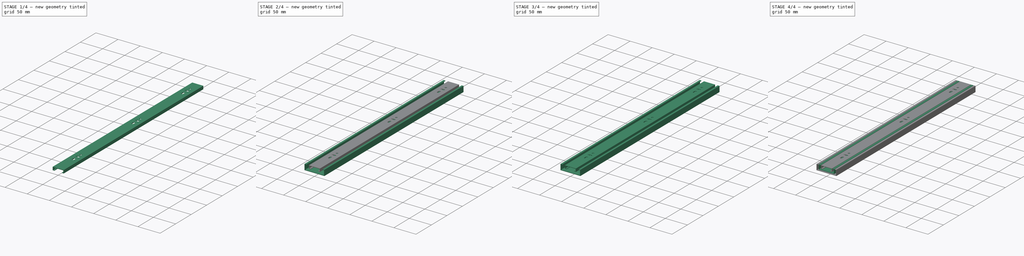
[diagram: build sequence overview — one tinted view per stage of 4, left to right]
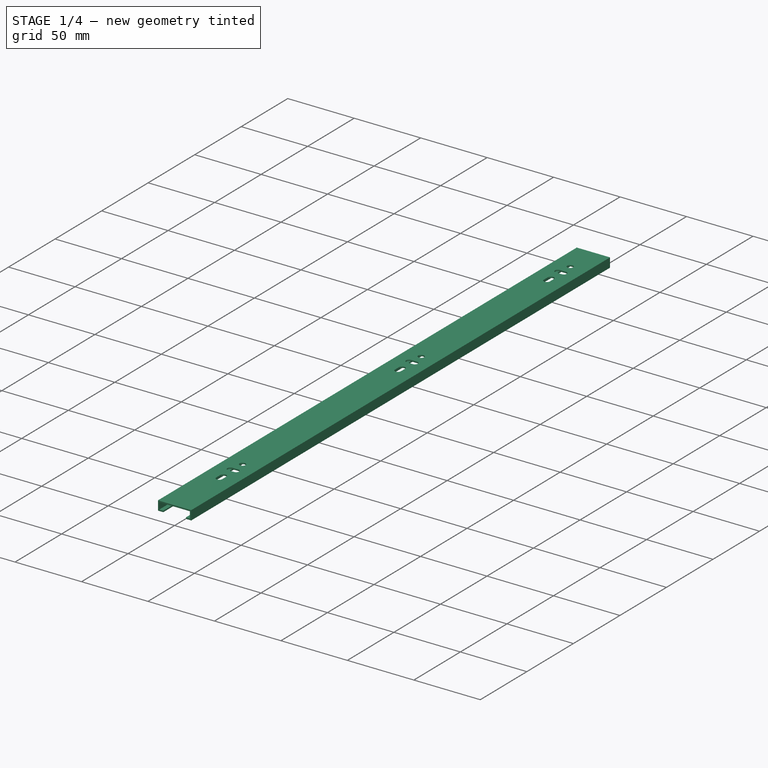
[diagram: stage 1 of 4 — iso view after this stage's code; geometry added in this stage tinted green]
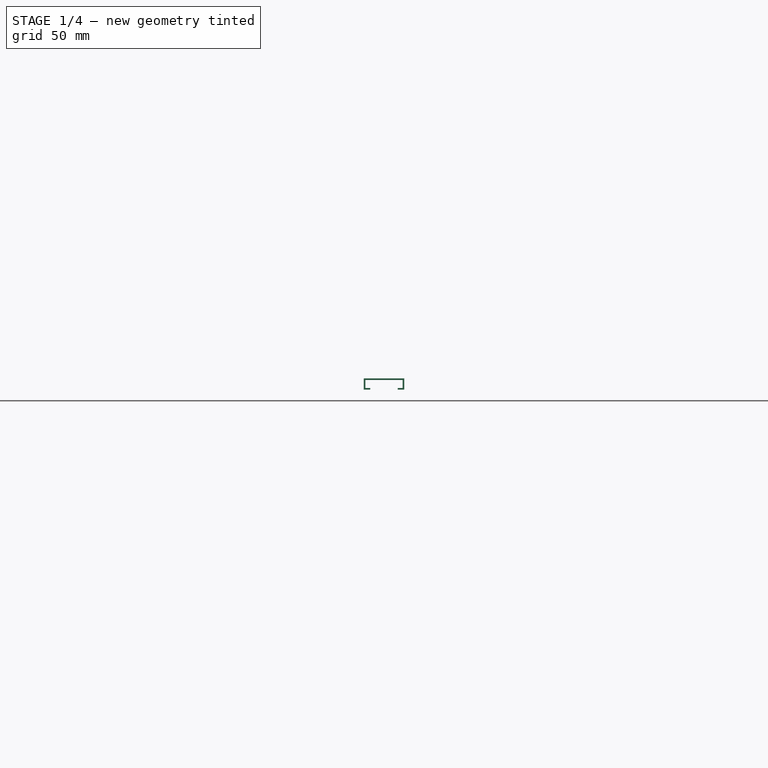
[diagram: stage 1 of 4 — front view after this stage's code; geometry added in this stage tinted green]
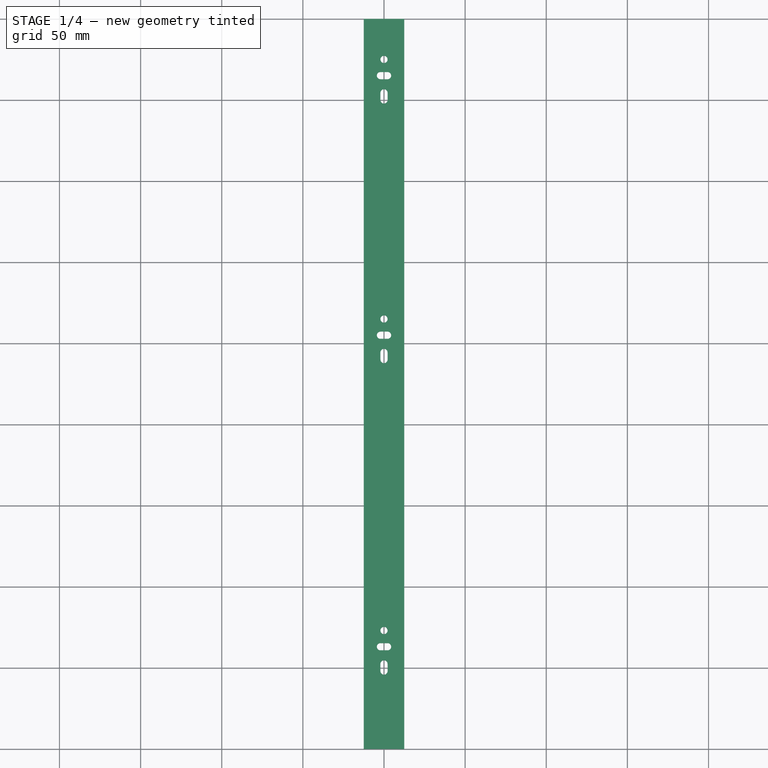
[diagram: stage 1 of 4 — top view after this stage's code; geometry added in this stage tinted green]
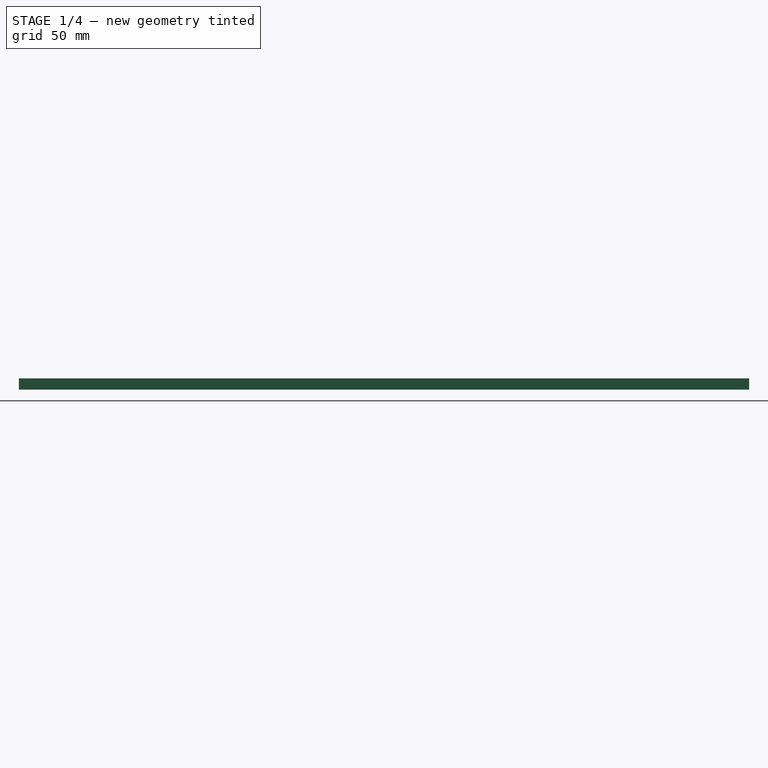
[diagram: stage 1 of 4 — right view after this stage's code; geometry added in this stage tinted green]
FCSTD DOCUMENT  (FreeCAD 0.19R18044 (Git))
Label: rail-450
License: Public Domain
LicenseURL: http://en.wikipedia.org/wiki/Public_domain
objects: Part::FeaturePython×13, Sketcher::SketchObject×9, PartDesign::Pocket×6, App::FeaturePython×6, PartDesign::Pad×3, PartDesign::Body×3, PartDesign::LinearPattern×3, PartDesign::Line×2
note: 45 computed .brp shape members not serialized (recipe doc carries the construction recipe); baked Part::Feature solids carry a one-line shape summary decoded from their .brp

FEATURE [PartDesign::Body] Body001  label="rail 2"
  Group = -> [Sketch002,Pad001,Sketch003,Pocket001]
  Origin = -> Origin001
  SingleSolid = true
  Tip = -> Pocket001
FEATURE [Sketcher::SketchObject] Sketch004
  MapMode = 5
  Placement = pos=(0,0,0) rot=(1,0,0;1.5708rad)
  Support = -> [XZ_Plane002]
  sketch-geometry (4):
    g0: LineSegment StartX=-12.5 StartY=12.7 StartZ=0 EndX=12.5 EndY=12.7 EndZ=0
    g1: LineSegment StartX=12.5 StartY=12.7 StartZ=0 EndX=12.5 EndY=5.7 EndZ=0
    g2: LineSegment StartX=12.5 StartY=5.7 StartZ=0 EndX=-12.5 EndY=5.7 EndZ=0
    g3: LineSegment StartX=-12.5 StartY=5.7 StartZ=0 EndX=-12.5 EndY=12.7 EndZ=0
  constraints (11):
    c: Coincident(g0,g1)
    c: Coincident(g1,g2)
    c: Coincident(g2,g3)
    c: Coincident(g3,g0)
    c: Horizontal(g2)
    c: Vertical(g1)
    c: Vertical(g3)
    c: Symmetric(g0,g0,g-2)
    c: Distance(g0) = 25
    c: Distance(g3) = 7
    c: DistanceY(g-1,g0) = 12.7
FEATURE [PartDesign::Pad] Pad002
  ClaimChildren = false
  Length = 450
  Length2 = 100
  Placement = pos=(0,0,0) rot=(1,0,0;1.5708rad)
  Profile = -> Sketch004
  Type = 0
FEATURE [Sketcher::SketchObject] Sketch005
  ExternalGeometry = -> [Pad002]
  MapMode = 5
  Placement = pos=(0,-450,-9.9e-14) rot=(1,0,0;1.5708rad)
  Support = -> [Pad002]
  sketch-geometry (8):
    g0: LineSegment StartX=-11.5 StartY=11.7 StartZ=0 EndX=11.5 EndY=11.7 EndZ=0
    g1: LineSegment StartX=11.5 StartY=11.7 StartZ=0 EndX=11.5 EndY=6.7 EndZ=0
    g2: LineSegment StartX=11.5 StartY=6.7 StartZ=0 EndX=8.5 EndY=6.7 EndZ=0
    g3: LineSegment StartX=8.5 StartY=6.7 StartZ=0 EndX=8.5 EndY=5.7 EndZ=0
    g4: LineSegment StartX=8.5 StartY=5.7 StartZ=0 EndX=-8.5 EndY=5.7 EndZ=0
    g5: LineSegment StartX=-8.5 StartY=5.7 StartZ=0 EndX=-8.5 EndY=6.7 EndZ=0
    g6: LineSegment StartX=-8.5 StartY=6.7 StartZ=0 EndX=-11.5 EndY=6.7 EndZ=0
    g7: LineSegment StartX=-11.5 StartY=6.7 StartZ=0 EndX=-11.5 EndY=11.7 EndZ=0
  constraints (23):
    c: Coincident(g0,g1)
    c: Vertical(g1)
    c: Coincident(g1,g2)
    c: Horizontal(g2)
    c: Coincident(g2,g3)
    c: Vertical(g3)
    c: Coincident(g3,g4)
    c: Horizontal(g4)
    c: Coincident(g4,g5)
    c: Vertical(g5)
    c: Coincident(g5,g6)
    c: Horizontal(g6)
    c: Coincident(g6,g7)
    c: Coincident(g7,g0)
    c: Vertical(g7)
    c: PointOnObject(g4,g-3)
    c: Equal(g3,g5)
    c: Equal(g2,g6)
    c: DistanceX(g1,g-3) = 1
    c: DistanceY(g-3,g1) = 1
    c: Symmetric(g0,g0,g-2)
    c: Distance(g1) = 5
    c: Distance(g2) = 3
FEATURE [PartDesign::Pocket] Pocket002
  BaseFeature = -> Pad002
  ClaimChildren = false
  Length = 5
  Length2 = 100
  Placement = pos=(0,0,0) rot=(1,0,0;1.5708rad)
  Profile = -> Sketch005
  Type = 1
FEATURE [Sketcher::SketchObject] Sketch011
  MapMode = 5
  Placement = pos=(0,0,12.7) rot=(0,0,1;3.14159rad)
  Support = -> [Pocket002]
  sketch-geometry (36):
    g0: Circle CenterX=0 CenterY=25 CenterZ=0 NormalX=0 NormalY=0 NormalZ=1 AngleXU=0 Radius=2.2
    g1: ArcOfCircle CenterX=2.2 CenterY=35 CenterZ=0 NormalX=0 NormalY=0 NormalZ=1 AngleXU=0 Radius=2.2 StartAngle=4.71239 EndAngle=7.85398
    g2: ArcOfCircle CenterX=-2.2 CenterY=35 CenterZ=0 NormalX=0 NormalY=0 NormalZ=1 AngleXU=0 Radius=2.2 StartAngle=1.5708 EndAngle=4.71239
    g3: LineSegment StartX=2.2 StartY=37.2 StartZ=0 EndX=-2.2 EndY=37.2 EndZ=0
    g4: LineSegment StartX=2.2 StartY=32.8 StartZ=0 EndX=-2.2 EndY=32.8 EndZ=0
    g5: ArcOfCircle CenterX=0 CenterY=50 CenterZ=0 NormalX=0 NormalY=0 NormalZ=1 AngleXU=0 Radius=2.2 StartAngle=-9e-16 EndAngle=3.14159
    g6: ArcOfCircle CenterX=-2e-16 CenterY=45.6 CenterZ=0 NormalX=0 NormalY=0 NormalZ=1 AngleXU=0 Radius=2.2 StartAngle=3.14159 EndAngle=6.28319
    g7: LineSegment StartX=-2.2 StartY=50 StartZ=0 EndX=-2.2 EndY=45.6 EndZ=0
    g8: LineSegment StartX=2.2 StartY=50 StartZ=0 EndX=2.2 EndY=45.6 EndZ=0
    g9: Circle CenterX=0 CenterY=185 CenterZ=0 NormalX=0 NormalY=0 NormalZ=1 AngleXU=0 Radius=2.2
    g10: ArcOfCircle CenterX=2.2 CenterY=195 CenterZ=0 NormalX=0 NormalY=0 NormalZ=1 AngleXU=0 Radius=2.2 StartAngle=4.71239 EndAngle=7.85398
    g11: ArcOfCircle CenterX=-2.2 CenterY=195 CenterZ=0 NormalX=0 NormalY=0 NormalZ=1 AngleXU=0 Radius=2.2 StartAngle=1.5708 EndAngle=4.71239
    g12: LineSegment StartX=2.2 StartY=197.2 StartZ=0 EndX=-2.2 EndY=197.2 EndZ=0
    g13: LineSegment StartX=2.2 StartY=192.8 StartZ=0 EndX=-2.2 EndY=192.8 EndZ=0
    g14: ArcOfCircle CenterX=0 CenterY=205.6 CenterZ=0 NormalX=0 NormalY=0 NormalZ=1 AngleXU=0 Radius=2.2 StartAngle=3.14159 EndAngle=6.28319
    g15: ArcOfCircle CenterX=0 CenterY=210 CenterZ=0 NormalX=0 NormalY=0 NormalZ=1 AngleXU=0 Radius=2.2 StartAngle=2.8e-15 EndAngle=3.14159
    g16: LineSegment StartX=2.2 StartY=205.6 StartZ=0 EndX=2.2 EndY=210 EndZ=0
    g17: LineSegment StartX=-2.2 StartY=205.6 StartZ=0 EndX=-2.2 EndY=210 EndZ=0
    g18: LineSegment [constr] StartX=0 StartY=35 StartZ=0 EndX=0 EndY=25 EndZ=0
    g19: LineSegment [constr] StartX=2.2 StartY=35 StartZ=0 EndX=0 EndY=35 EndZ=0
    g20: LineSegment [constr] StartX=0 StartY=35 StartZ=0 EndX=-2e-16 EndY=45.6 EndZ=0
    g21: LineSegment [constr] StartX=2.2 StartY=195 StartZ=0 EndX=0 EndY=195 EndZ=0
    g22: LineSegment [constr] StartX=0 StartY=185 StartZ=0 EndX=0 EndY=195 EndZ=0
    g23: LineSegment [constr] StartX=0 StartY=195 StartZ=0 EndX=0 EndY=205.6 EndZ=0
    g24: Circle CenterX=0 CenterY=377 CenterZ=0 NormalX=0 NormalY=0 NormalZ=1 AngleXU=0 Radius=2.2
    g25: ArcOfCircle CenterX=2.2 CenterY=387 CenterZ=0 NormalX=0 NormalY=0 NormalZ=1 AngleXU=0 Radius=2.2 StartAngle=4.71239 EndAngle=7.85398
    g26: ArcOfCircle CenterX=-2.2 CenterY=387 CenterZ=0 NormalX=0 NormalY=0 NormalZ=1 AngleXU=0 Radius=2.2 StartAngle=1.5708 EndAngle=4.71239
    g27: LineSegment StartX=2.2 StartY=389.2 StartZ=0 EndX=-2.2 EndY=389.2 EndZ=0
    g28: LineSegment StartX=2.2 StartY=384.8 StartZ=0 EndX=-2.2 EndY=384.8 EndZ=0
    g29: ArcOfCircle CenterX=0 CenterY=402 CenterZ=0 NormalX=0 NormalY=0 NormalZ=1 AngleXU=0 Radius=2.2 StartAngle=-7.1e-15 EndAngle=3.14159
    g30: ArcOfCircle CenterX=-1e-16 CenterY=397.6 CenterZ=0 NormalX=0 NormalY=0 NormalZ=1 AngleXU=0 Radius=2.2 StartAngle=3.14159 EndAngle=6.28319
    g31: LineSegment StartX=-2.2 StartY=402 StartZ=0 EndX=-2.2 EndY=397.6 EndZ=0
    g32: LineSegment StartX=2.2 StartY=402 StartZ=0 EndX=2.2 EndY=397.6 EndZ=0
    g33: LineSegment [constr] StartX=2.2 StartY=387 StartZ=0 EndX=0 EndY=387 EndZ=0
    g34: LineSegment [constr] StartX=0 StartY=377 StartZ=0 EndX=0 EndY=387 EndZ=0
    g35: LineSegment [constr] StartX=0 StartY=387 StartZ=0 EndX=-1e-16 EndY=397.6 EndZ=0
  constraints (89):
    c: PointOnObject(g0,g-2)
    c: Tangent(g1,g4) = 1.5708
    c: Tangent(g1,g3) = -1.5708
    c: Tangent(g3,g2) = -1.5708
    c: Tangent(g4,g2) = 1.5708
    c: Horizontal(g3)
    c: Tangent(g5,g8) = 1.5708
    c: Tangent(g5,g7) = -1.5708
    c: Tangent(g7,g6) = -1.5708
    c: Tangent(g8,g6) = 1.5708
    c: Vertical(g7)
    c: Equal(g5,g6)
    c: PointOnObject(g5,g-2)
    c: Equal(g4,g8)
    c: Equal(g2,g5)
    c: Symmetric(g2,g1,g-2)
    c: Diameter(g2) = 4.4
    c: Distance(g4) = 4.4
    c: Diameter(g0) = 4.4
    c: DistanceY(g-1,g0) = 25
    c: DistanceY(g-1,g2) = 35
    c: DistanceY(g5) = 50
    c: PointOnObject(g9,g-2)
    c: Tangent(g10,g13) = 1.5708
    c: Tangent(g10,g12) = -1.5708
    c: Tangent(g12,g11) = -1.5708
    c: Tangent(g13,g11) = 1.5708
    c: Horizontal(g12)
    c: Tangent(g14,g17) = 1.5708
    c: Tangent(g14,g16) = -1.5708
    c: Tangent(g16,g15) = -1.5708
    c: Tangent(g17,g15) = 1.5708
    c: Vertical(g16)
    c: Equal(g14,g15)
    c: Equal(g14,g11)
    c: Equal(g11,g10)
    c: Equal(g15,g5)
    c: Equal(g9,g0)
    c: Equal(g7,g17)
    c: Equal(g13,g3)
    c: PointOnObject(g18,g-2)
    c: Coincident(g18,g0)
    c: Coincident(g19,g1)
    c: Horizontal(g19)
    c: Coincident(g19,g18)
    c: Coincident(g20,g18)
    c: Coincident(g20,g6)
    c: PointOnObject(g21,g-2)
    c: Coincident(g21,g10)
    c: Horizontal(g21)
    c: DistanceY(g0,g9) = 160
    c: Equal(g21,g19)
    c: Coincident(g22,g9)
    c: Coincident(g22,g21)
    c: Coincident(g23,g21)
    c: Coincident(g23,g14)
    c: Vertical(g23)
    c: Equal(g23,g20)
    c: Equal(g18,g22)
    c: PointOnObject(g24,g-2)
    c: Tangent(g25,g28) = 1.5708
    c: Tangent(g25,g27) = -1.5708
    c: Tangent(g27,g26) = -1.5708
    c: Tangent(g28,g26) = 1.5708
    c: Horizontal(g27)
    c: Equal(g25,g26)
    c: Tangent(g29,g32) = 1.5708
    c: Tangent(g29,g31) = -1.5708
    c: Tangent(g31,g30) = -1.5708
    c: Tangent(g32,g30) = 1.5708
    c: Vertical(g31)
    c: Equal(g29,g30)
    c: PointOnObject(g29,g-2)
    c: Equal(g30,g26)
    c: Equal(g26,g5)
    c: Equal(g24,g0)
    c: Equal(g28,g4)
    c: Equal(g7,g31)
    c: Coincident(g33,g25)
    c: PointOnObject(g33,g-2)
    c: Horizontal(g33)
    c: Coincident(g34,g24)
    c: Coincident(g34,g33)
    c: Coincident(g35,g33)
    c: Coincident(g35,g30)
    c: Equal(g34,g18)
    c: Equal(g20,g35)
    c: Equal(g33,g19)
    c: DistanceY(g0,g24) = 352
FEATURE [PartDesign::Pocket] Pocket005
  BaseFeature = -> Pocket002
  ClaimChildren = false
  Length = 5
  Length2 = 100
  Placement = pos=(0,0,0) rot=(1,0,0;1.5708rad)
  Profile = -> Sketch011
  Type = 1
FEATURE [App::FeaturePython] Constraints  # WARN: FeaturePython — macro-defined, semantics opaque (R4)
  GroupMode = 1
  _Version = 1
FEATURE [App::FeaturePython] Constraints001  # WARN: FeaturePython — macro-defined, semantics opaque (R4)
  GroupMode = 1
  _Version = 1
FEATURE [App::FeaturePython] Elements001  # WARN: FeaturePython — macro-defined, semantics opaque (R4)
  GroupMode = 1
FEATURE [Part::FeaturePython] Parts001  # WARN: FeaturePython — macro-defined, semantics opaque (R4)
  Group = -> [Origin004,Body001]
  GroupMode = 0
FEATURE [Part::FeaturePython] Assembly001  label="rail middle"  # WARN: FeaturePython — macro-defined, semantics opaque (R4)
  AutoRelax = true
  BuildShape = 0
  Freeze = false
  Group = -> [Constraints001,Elements001,Parts001]
  GroupMode = 1
  SolverType = 1
  Verbose = false
  _SolverType = 1
  _Version = 1
FEATURE [App::FeaturePython] Constraints002  # WARN: FeaturePython — macro-defined, semantics opaque (R4)
  GroupMode = 1
  _Version = 1
FEATURE [PartDesign::Line] DatumLine
  AttacherType = Attacher::AttachEngineLine
  AttachmentOffset = pos=(6.35,0,0) rot=(0,0,1;0rad)
  MapMode = 16
  Placement = pos=(-4e-16,4e-16,6.35) rot=(0.57735,0.57735,0.57735;4.18879rad)
  Support = -> [Y_Axis]
FEATURE [PartDesign::Body] Body  label="rail 1"
  Group = -> [Sketch,Pad,Sketch001,Pocket,Sketch009,Pocket003,LinearPattern,LinearPattern001,LinearPattern002,Sketch010,Pocket004,DatumLine]
  Origin = -> Origin
  SingleSolid = true
  Tip = -> Pocket004
FEATURE [Part::FeaturePython] Parts  # WARN: FeaturePython — macro-defined, semantics opaque (R4)
  Group = -> [Origin003,Body]
  GroupMode = 0
FEATURE [PartDesign::Line] DatumLine001
  AttacherType = Attacher::AttachEngineLine
  AttachmentOffset = pos=(6.35,0,0) rot=(0,0,1;0rad)
  MapMode = 16
  Placement = pos=(-4e-16,4e-16,6.35) rot=(0.57735,0.57735,0.57735;4.18879rad)
  Support = -> [Y_Axis002]
FEATURE [PartDesign::Body] Body002  label="rail 3"
  Group = -> [Sketch004,Pad002,Sketch005,Pocket002,Sketch011,Pocket005,DatumLine001]
  Origin = -> Origin002
  SingleSolid = true
  Tip = -> Pocket005
FEATURE [Part::FeaturePython] Parts002  # WARN: FeaturePython — macro-defined, semantics opaque (R4)
  Group = -> [Origin005,Body002]
  GroupMode = 0
FEATURE [Part::FeaturePython] Assembly  label="rail bottom"  # WARN: FeaturePython — macro-defined, semantics opaque (R4)
  AutoRelax = true
  BuildShape = 0
  Freeze = false
  Group = -> [Constraints,Elements,Parts]
  GroupMode = 1
  SolverType = 1
  Verbose = false
  _SolverType = 1
  _Version = 1
FEATURE [App::FeaturePython] Elements  # WARN: FeaturePython — macro-defined, semantics opaque (R4)
  Group = -> [Element003,Element004,Element005]
  GroupMode = 1
FEATURE [Part::FeaturePython] Assembly002  label="rail top"  # WARN: FeaturePython — macro-defined, semantics opaque (R4)
  AutoRelax = true
  BuildShape = 0
  Freeze = false
  Group = -> [Constraints002,Elements002,Parts002]
  GroupMode = 1
  SolverType = 1
  Verbose = false
  _SolverType = 1
  _Version = 1
FEATURE [App::FeaturePython] Elements002  # WARN: FeaturePython — macro-defined, semantics opaque (R4)
  Group = -> [Element,Element001,Element002,Element006]
  GroupMode = 1
FEATURE [Part::FeaturePython] Element  label="mount_top"  # link proxy (typed FeaturePython)
  Detach = false
  LinkTransform = true
  LinkedObject = -> Body002 [Pocket005.Sketch011.Edge1]
  _Parent = -> Elements002
FEATURE [Part::FeaturePython] Element001  label="mount_middle"  # link proxy (typed FeaturePython)
  Detach = false
  LinkTransform = true
  LinkedObject = -> Body002 [Pocket005.Sketch011.Edge10]
  _Parent = -> Elements002
FEATURE [Part::FeaturePython] Element002  label="mount_bottom"  # link proxy (typed FeaturePython)
  Detach = false
  LinkTransform = true
  LinkedObject = -> Body002 [Pocket005.Sketch011.Edge19]
  _Parent = -> Elements002
FEATURE [Part::FeaturePython] Element003  label="mount_top"  # link proxy (typed FeaturePython)
  Detach = false
  LinkTransform = true
  LinkedObject = -> Body [Pocket004.Sketch010.Edge1]
  _Parent = -> Elements
FEATURE [Part::FeaturePython] Element004  label="mount_bottom"  # link proxy (typed FeaturePython)
  Detach = false
  LinkTransform = true
  LinkedObject = -> Body [Pocket004.Sketch010.Edge2]
  _Parent = -> Elements
FEATURE [Part::FeaturePython] Element005  label="slide_axis"  # link proxy (typed FeaturePython)
  Detach = false
  LinkTransform = true
  LinkedObject = -> Body [DatumLine.]
  _Parent = -> Elements
FEATURE [Part::FeaturePython] Element006  label="slide_axis"  # link proxy (typed FeaturePython)
  Detach = false
  LinkTransform = true
  LinkedObject = -> Body002 [DatumLine001.]
  _Parent = -> Elements002
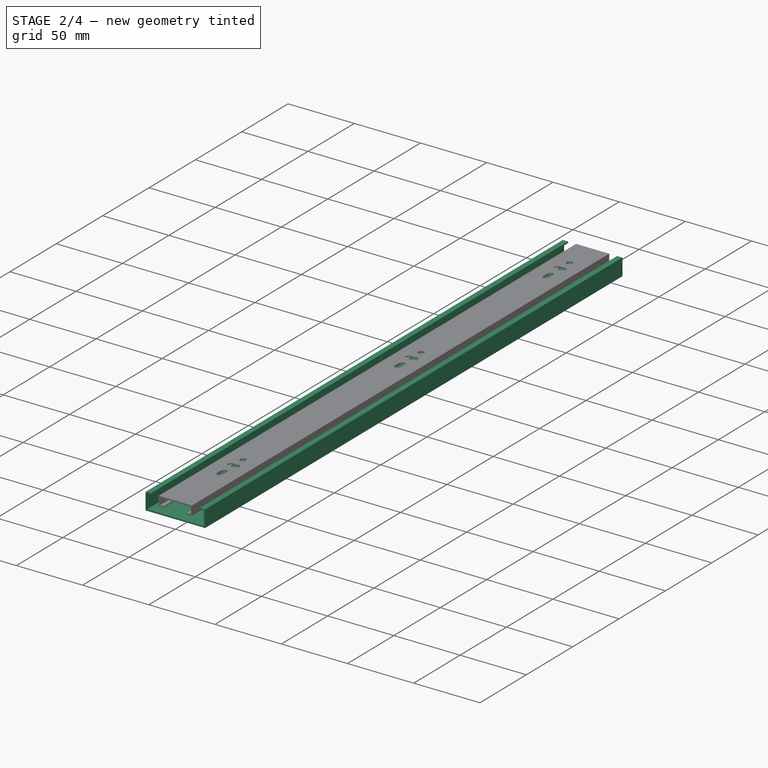
[diagram: stage 2 of 4 — iso view after this stage's code; geometry added in this stage tinted green]
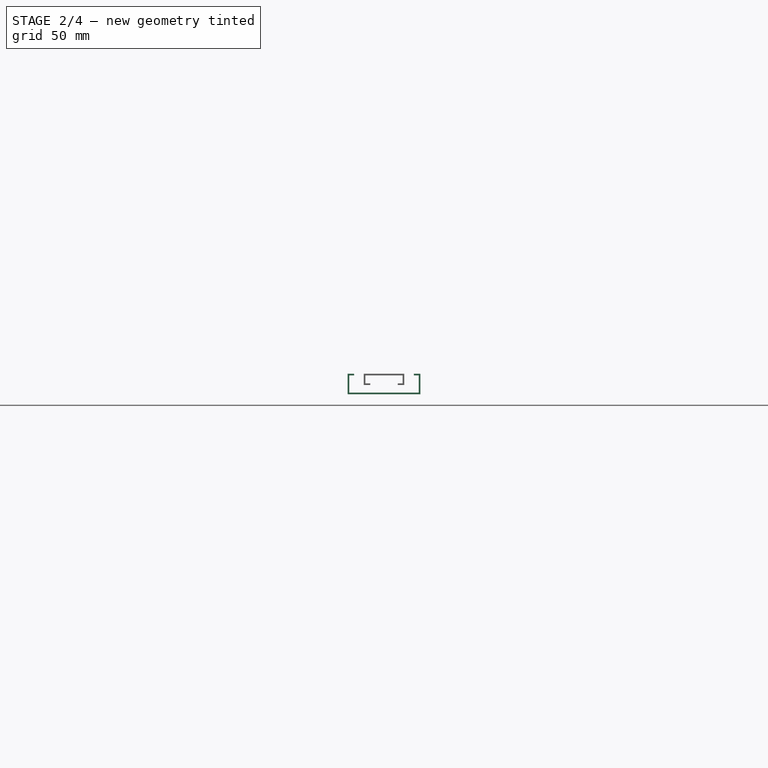
[diagram: stage 2 of 4 — front view after this stage's code; geometry added in this stage tinted green]
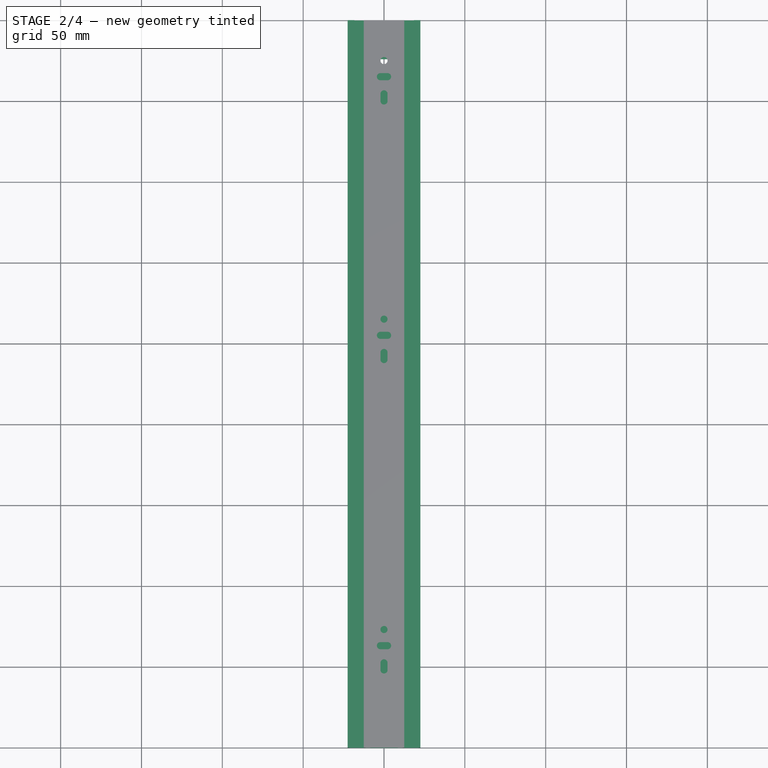
[diagram: stage 2 of 4 — top view after this stage's code; geometry added in this stage tinted green]
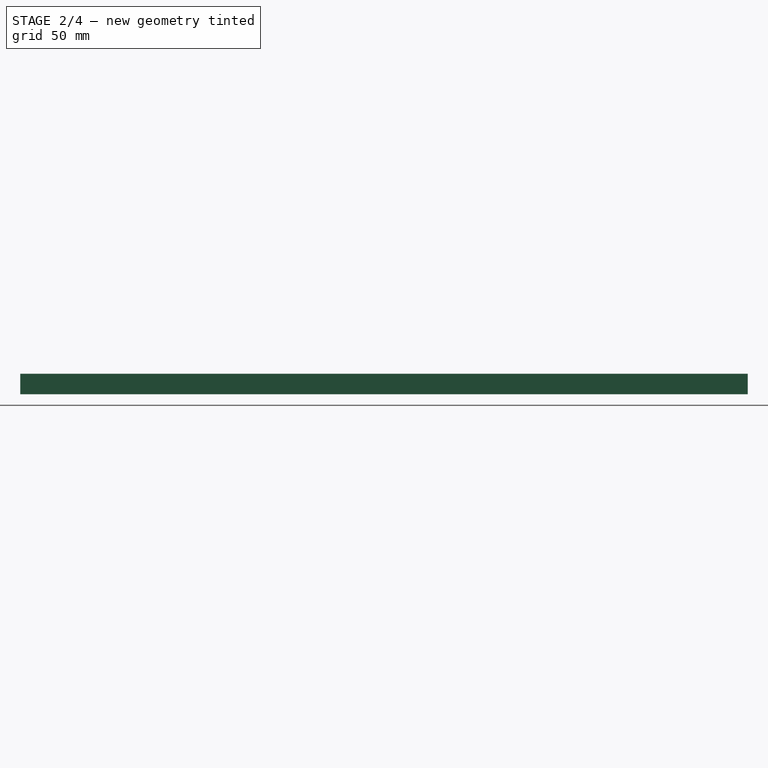
[diagram: stage 2 of 4 — right view after this stage's code; geometry added in this stage tinted green]
FEATURE [Sketcher::SketchObject] Sketch
  MapMode = 5
  Placement = pos=(0,0,0) rot=(1,0,0;1.5708rad)
  Support = -> [XZ_Plane]
  sketch-geometry (4):
    g0: LineSegment StartX=-22.5 StartY=12.7 StartZ=0 EndX=22.5 EndY=12.7 EndZ=0
    g1: LineSegment StartX=22.5 StartY=12.7 StartZ=0 EndX=22.5 EndY=0 EndZ=0
    g2: LineSegment StartX=22.5 StartY=0 StartZ=0 EndX=-22.5 EndY=0 EndZ=0
    g3: LineSegment StartX=-22.5 StartY=0 StartZ=0 EndX=-22.5 EndY=12.7 EndZ=0
  constraints (11):
    c: Coincident(g0,g1)
    c: Coincident(g1,g2)
    c: Coincident(g2,g3)
    c: Coincident(g3,g0)
    c: Horizontal(g2)
    c: Vertical(g1)
    c: Vertical(g3)
    c: PointOnObject(g1,g-1)
    c: Symmetric(g0,g0,g-2)
    c: Distance(g0) = 45
    c: Distance(g3) = 12.7
FEATURE [PartDesign::Pad] Pad
  ClaimChildren = false
  Length = 450
  Length2 = 100
  Placement = pos=(0,0,0) rot=(1,0,0;1.5708rad)
  Profile = -> Sketch
  Type = 0
FEATURE [Sketcher::SketchObject] Sketch001
  ExternalGeometry = -> [Pad]
  MapMode = 5
  Placement = pos=(0,-450,-9.9e-14) rot=(1,0,0;1.5708rad)
  Support = -> [Pad]
  sketch-geometry (8):
    g0: LineSegment StartX=-18.5 StartY=12.7 StartZ=0 EndX=-18.5 EndY=11.7 EndZ=0
    g1: LineSegment StartX=-18.5 StartY=11.7 StartZ=0 EndX=-21.5 EndY=11.7 EndZ=0
    g2: LineSegment StartX=-21.5 StartY=11.7 StartZ=0 EndX=-21.5 EndY=1 EndZ=0
    g3: LineSegment StartX=-21.5 StartY=1 StartZ=0 EndX=21.5 EndY=1 EndZ=0
    g4: LineSegment StartX=21.5 StartY=1 StartZ=0 EndX=21.5 EndY=11.7 EndZ=0
    g5: LineSegment StartX=21.5 StartY=11.7 StartZ=0 EndX=18.5 EndY=11.7 EndZ=0
    g6: LineSegment StartX=18.5 StartY=11.7 StartZ=0 EndX=18.5 EndY=12.7 EndZ=0
    g7: LineSegment StartX=18.5 StartY=12.7 StartZ=0 EndX=-18.5 EndY=12.7 EndZ=0
  constraints (23):
    c: Vertical(g0)
    c: Coincident(g0,g1)
    c: Horizontal(g1)
    c: Coincident(g1,g2)
    c: Vertical(g2)
    c: Coincident(g2,g3)
    c: Coincident(g3,g4)
    c: Vertical(g4)
    c: Coincident(g4,g5)
    c: Horizontal(g5)
    c: Coincident(g5,g6)
    c: Coincident(g6,g7)
    c: Coincident(g7,g0)
    c: PointOnObject(g6,g-4)
    c: DistanceX(g3,g-3) = 1
    c: DistanceY(g-3,g3) = 1
    c: DistanceY(g4,g-4) = 1
    c: Vertical(g6)
    c: Equal(g6,g0)
    c: Equal(g1,g5)
    c: Equal(g4,g2)
    c: Distance(g5) = 3
    c: Symmetric(g2,g3,g-2)
FEATURE [PartDesign::Pocket] Pocket
  BaseFeature = -> Pad
  ClaimChildren = false
  Length = 5
  Length2 = 100
  Placement = pos=(0,0,0) rot=(1,0,0;1.5708rad)
  Profile = -> Sketch001
  Type = 1
FEATURE [Sketcher::SketchObject] Sketch009
  MapMode = 5
  Placement = pos=(0,0,1) rot=(0,0,1;3.14159rad)
  Support = -> [Pocket]
  sketch-geometry (12):
    g0: LineSegment StartX=11 StartY=57 StartZ=0 EndX=11 EndY=26.2 EndZ=0
    g1: ArcOfCircle CenterX=8.8 CenterY=26.2 CenterZ=0 NormalX=0 NormalY=0 NormalZ=1 AngleXU=0 Radius=2.2 StartAngle=4.71239 EndAngle=6.28319
    g2: LineSegment StartX=8.8 StartY=24 StartZ=0 EndX=-8.8 EndY=24 EndZ=0
    g3: ArcOfCircle CenterX=-8.8 CenterY=26.2 CenterZ=0 NormalX=0 NormalY=0 NormalZ=1 AngleXU=0 Radius=2.2 StartAngle=3.14159 EndAngle=4.71239
    g4: LineSegment StartX=-11 StartY=26.2 StartZ=0 EndX=-11 EndY=57 EndZ=0
    g5: ArcOfCircle CenterX=-9.3 CenterY=57 CenterZ=0 NormalX=0 NormalY=0 NormalZ=1 AngleXU=0 Radius=1.7 StartAngle=-1.8e-15 EndAngle=3.14159
    g6: LineSegment StartX=-7.6 StartY=57 StartZ=0 EndX=-7.6 EndY=30.1 EndZ=0
    g7: ArcOfCircle CenterX=-5.9 CenterY=30.1 CenterZ=0 NormalX=0 NormalY=0 NormalZ=1 AngleXU=0 Radius=1.7 StartAngle=3.14159 EndAngle=4.71239
    g8: LineSegment StartX=-5.9 StartY=28.4 StartZ=0 EndX=5.9 EndY=28.4 EndZ=0
    g9: ArcOfCircle CenterX=5.9 CenterY=30.1 CenterZ=0 NormalX=0 NormalY=0 NormalZ=1 AngleXU=0 Radius=1.7 StartAngle=4.71239 EndAngle=6.28319
    g10: LineSegment StartX=7.6 StartY=30.1 StartZ=0 EndX=7.6 EndY=57 EndZ=0
    g11: ArcOfCircle CenterX=9.3 CenterY=57 CenterZ=0 NormalX=0 NormalY=0 NormalZ=1 AngleXU=0 Radius=1.7 StartAngle=-1.8e-15 EndAngle=3.14159
  constraints (30):
    c: Vertical(g0)
    c: Tangent(g0,g1) = 1.5708
    c: Tangent(g1,g2) = 1.5708
    c: Tangent(g2,g3) = 1.5708
    c: Tangent(g3,g4) = 1.5708
    c: Tangent(g4,g5) = 1.5708
    c: Tangent(g5,g6) = 1.5708
    c: Tangent(g6,g7) = -1.5708
    c: Tangent(g7,g8) = -1.5708
    c: Tangent(g8,g9) = -1.5708
    c: Tangent(g9,g10) = -1.5708
    c: Tangent(g10,g11) = 1.5708
    c: Horizontal(g8)
    c: Vertical(g10)
    c: Vertical(g6)
    c: Coincident(g11,g0)
    c: Vertical(g4)
    c: Equal(g6,g10)
    c: Equal(g4,g0)
    c: Horizontal(g10,g0)
    c: Equal(g5,g11)
    c: Equal(g9,g7)
    c: Diameter(g11) = 3.4
    c: Diameter(g1) = 4.4
    c: Diameter(g9) = 3.4
    c: DistanceY(g2,g7) = 4.4
    c: Symmetric(g1,g2,g-2)
    c: DistanceX(g3,g0) = 22
    c: DistanceY(g1,g10) = 33
    c: DistanceY(g-1,g2) = 24
FEATURE [PartDesign::Pocket] Pocket003
  BaseFeature = -> Pocket
  ClaimChildren = false
  Length = 5
  Length2 = 100
  Placement = pos=(0,0,0) rot=(1,0,0;1.5708rad)
  Profile = -> Sketch009
  Type = 1
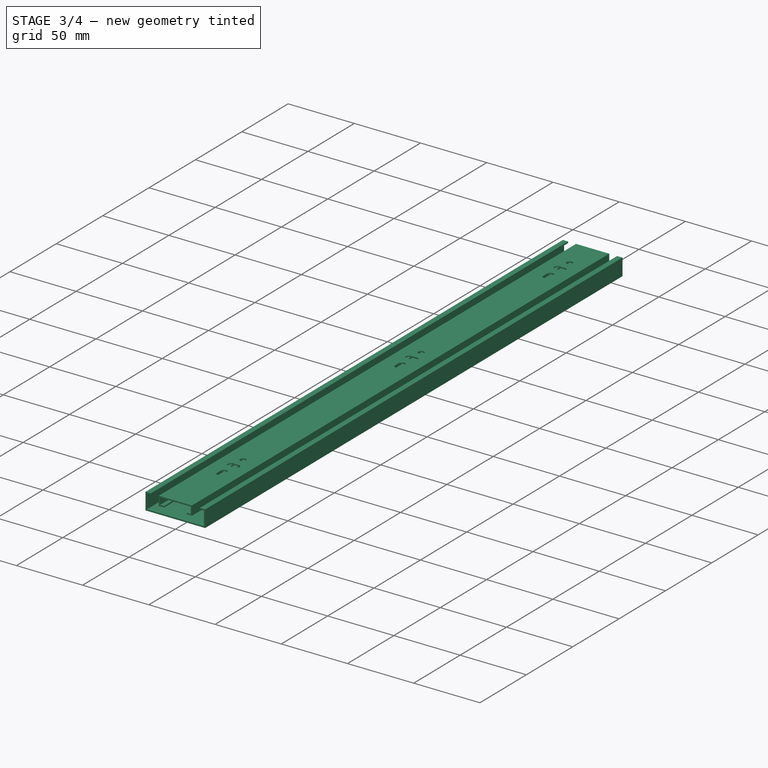
[diagram: stage 3 of 4 — iso view after this stage's code; geometry added in this stage tinted green]
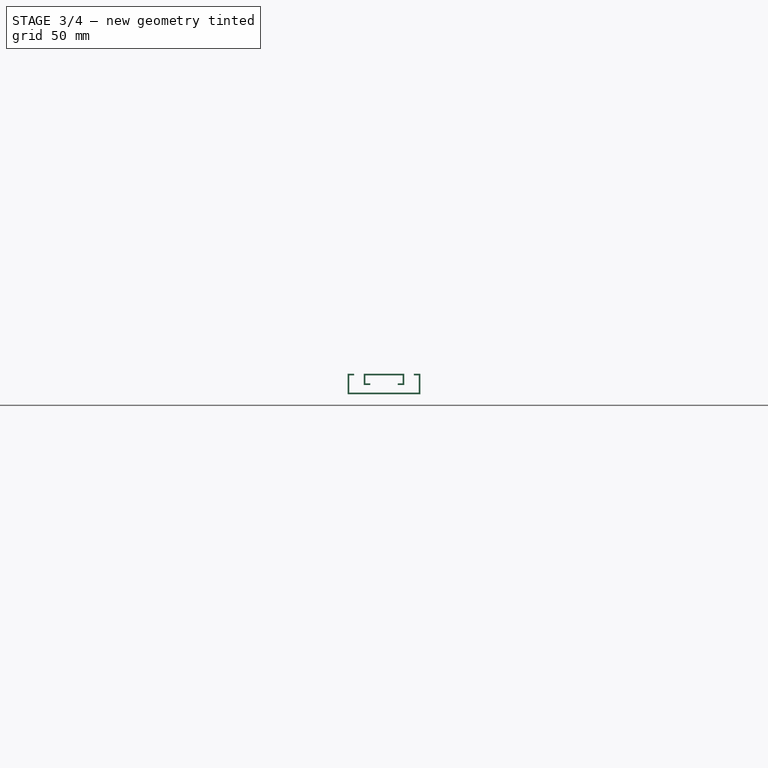
[diagram: stage 3 of 4 — front view after this stage's code; geometry added in this stage tinted green]
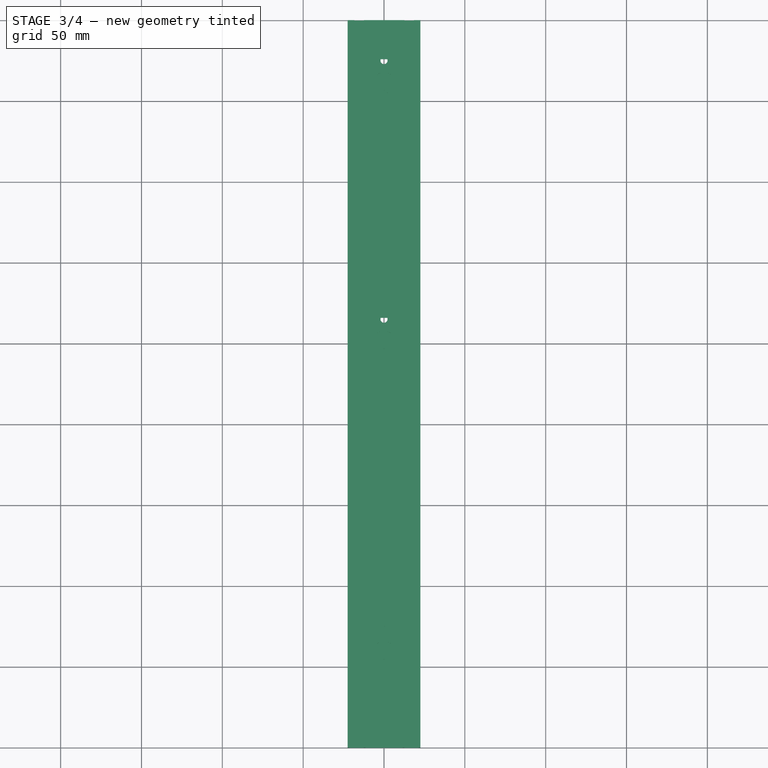
[diagram: stage 3 of 4 — top view after this stage's code; geometry added in this stage tinted green]
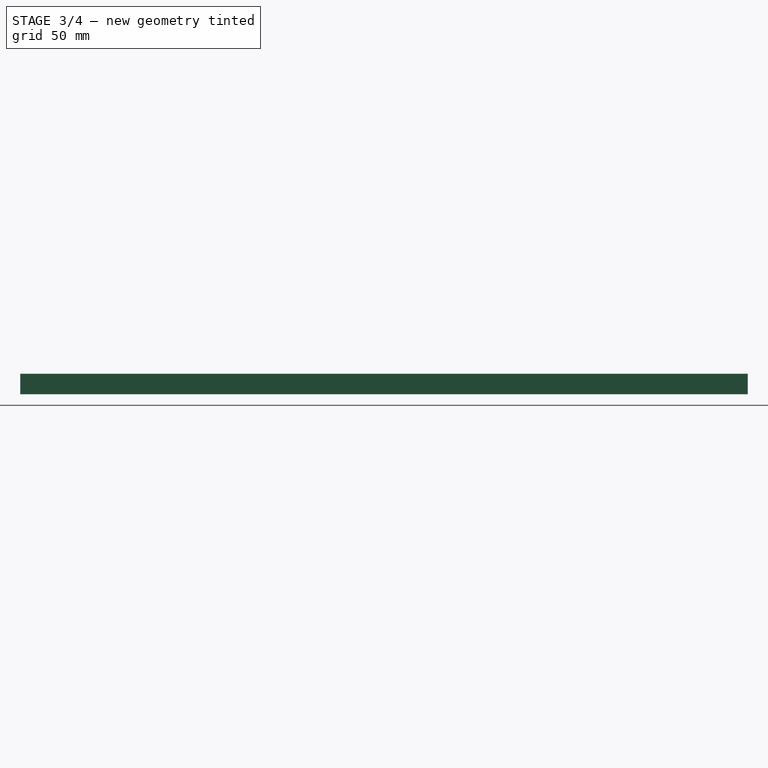
[diagram: stage 3 of 4 — right view after this stage's code; geometry added in this stage tinted green]
FEATURE [PartDesign::LinearPattern] LinearPattern
  BaseFeature = -> Pocket003
  CopyShape = true
  Direction = -> Y_Axis
  Length = 65
  Occurrences = 2
  OriginalSubs = -> [Pocket003]
  Originals = -> [Pocket003]
  Placement = pos=(0,0,0) rot=(1,0,0;1.5708rad)
  Reversed = true
  SubTransform = true
FEATURE [PartDesign::LinearPattern] LinearPattern001
  BaseFeature = -> LinearPattern
  CopyShape = true
  Direction = -> Y_Axis
  Length = 320
  Occurrences = 3
  OriginalSubs = -> [Pocket003]
  Originals = -> [Pocket003]
  Placement = pos=(0,0,0) rot=(1,0,0;1.5708rad)
  Reversed = true
  SubTransform = true
FEATURE [PartDesign::LinearPattern] LinearPattern002
  BaseFeature = -> LinearPattern001
  CopyShape = true
  Direction = -> Y_Axis
  Length = 257
  Occurrences = 2
  OriginalSubs = -> [Pocket003]
  Originals = -> [Pocket003]
  Placement = pos=(0,0,0) rot=(1,0,0;1.5708rad)
  Reversed = true
  SubTransform = true
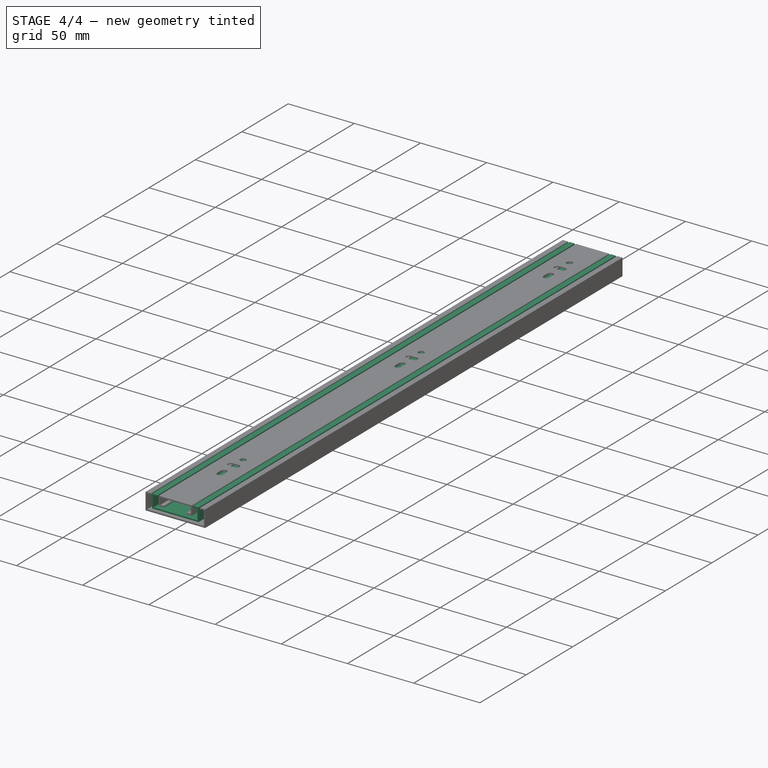
[diagram: stage 4 of 4 — iso view after this stage's code; geometry added in this stage tinted green]
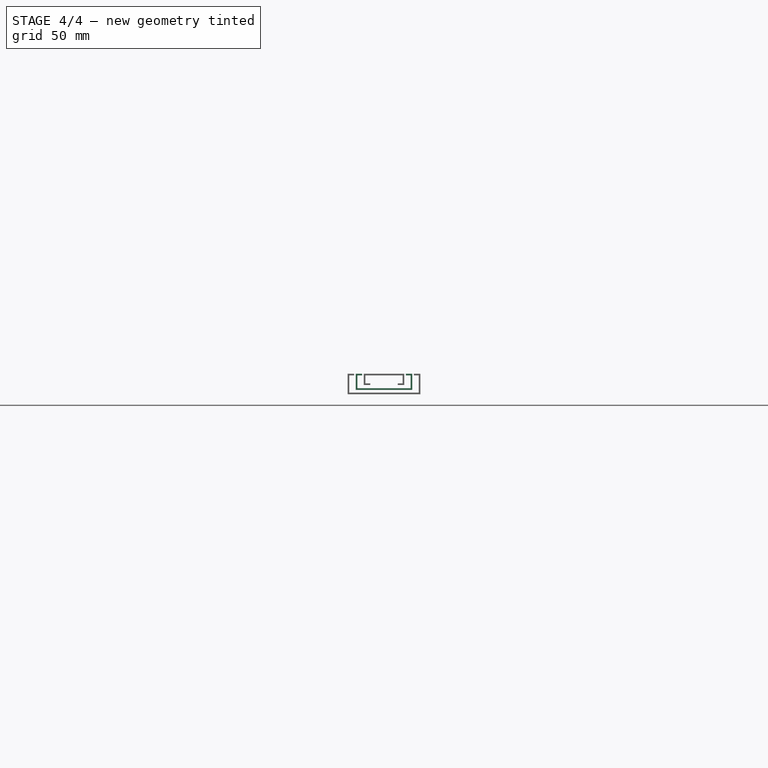
[diagram: stage 4 of 4 — front view after this stage's code; geometry added in this stage tinted green]
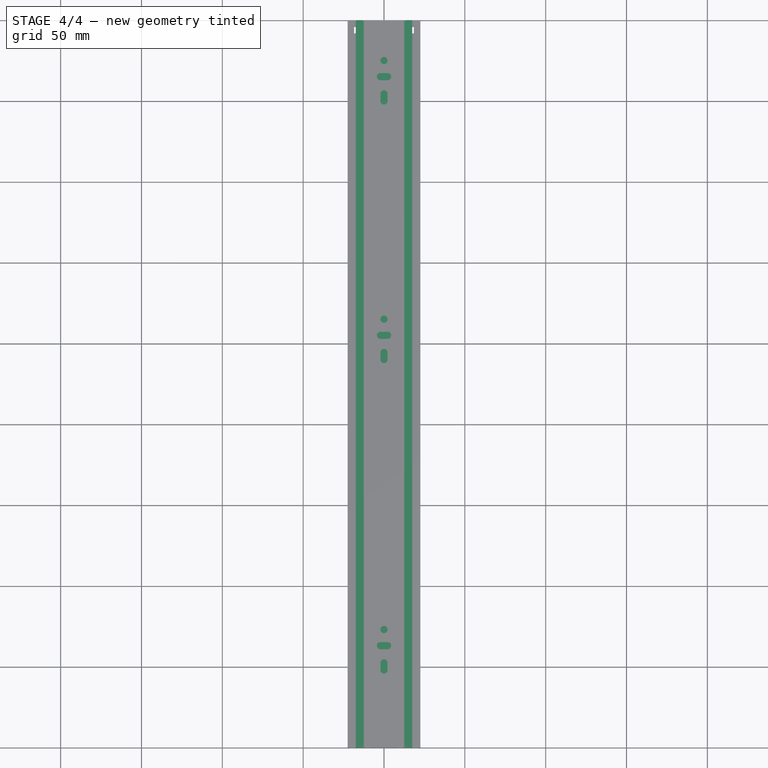
[diagram: stage 4 of 4 — top view after this stage's code; geometry added in this stage tinted green]
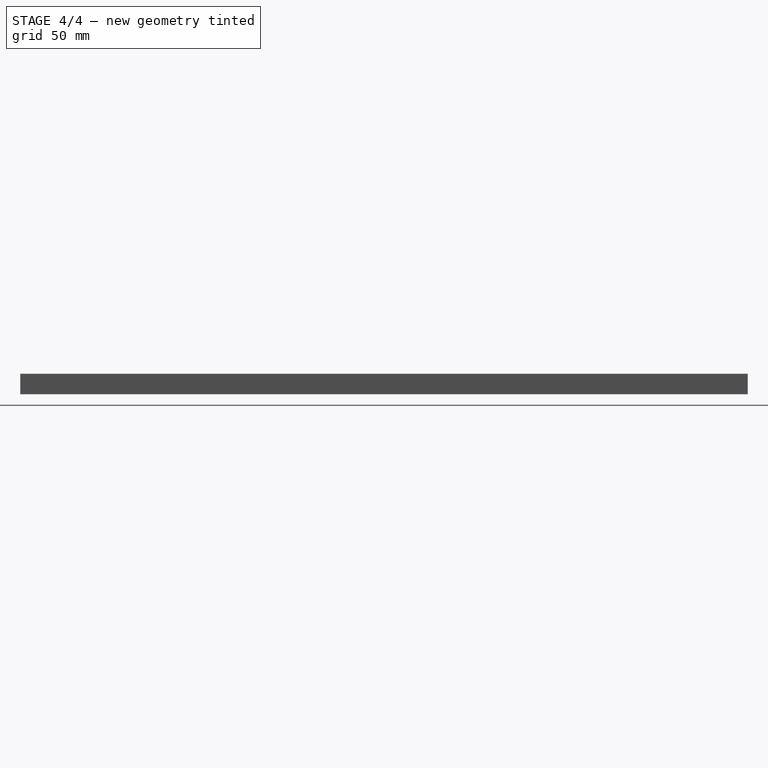
[diagram: stage 4 of 4 — right view after this stage's code; geometry added in this stage tinted green]
FEATURE [Sketcher::SketchObject] Sketch002
  MapMode = 5
  Placement = pos=(0,0,0) rot=(1,0,0;1.5708rad)
  Support = -> [XZ_Plane001]
  sketch-geometry (4):
    g0: LineSegment StartX=-17.5 StartY=12.7 StartZ=0 EndX=17.5 EndY=12.7 EndZ=0
    g1: LineSegment StartX=17.5 StartY=12.7 StartZ=0 EndX=17.5 EndY=2.7 EndZ=0
    g2: LineSegment StartX=17.5 StartY=2.7 StartZ=0 EndX=-17.5 EndY=2.7 EndZ=0
    g3: LineSegment StartX=-17.5 StartY=2.7 StartZ=0 EndX=-17.5 EndY=12.7 EndZ=0
  constraints (11):
    c: Coincident(g0,g1)
    c: Coincident(g1,g2)
    c: Coincident(g2,g3)
    c: Coincident(g3,g0)
    c: Horizontal(g2)
    c: Vertical(g1)
    c: Vertical(g3)
    c: Symmetric(g0,g0,g-2)
    c: Distance(g0) = 35
    c: DistanceY(g-1,g2) = 2.7
    c: Distance(g3) = 10
FEATURE [PartDesign::Pad] Pad001
  ClaimChildren = false
  Length = 450
  Length2 = 100
  Placement = pos=(0,0,0) rot=(1,0,0;1.5708rad)
  Profile = -> Sketch002
  Type = 0
FEATURE [Sketcher::SketchObject] Sketch003
  ExternalGeometry = -> [Pad001]
  MapMode = 5
  Placement = pos=(0,-450,-9.9e-14) rot=(1,0,0;1.5708rad)
  Support = -> [Pad001]
  sketch-geometry (8):
    g0: LineSegment StartX=-13.5 StartY=12.7 StartZ=0 EndX=-13.5 EndY=11.7 EndZ=0
    g1: LineSegment StartX=-13.5 StartY=11.7 StartZ=0 EndX=-16.5 EndY=11.7 EndZ=0
    g2: LineSegment StartX=-16.5 StartY=11.7 StartZ=0 EndX=-16.5 EndY=3.7 EndZ=0
    g3: LineSegment StartX=-16.5 StartY=3.7 StartZ=0 EndX=16.5 EndY=3.7 EndZ=0
    g4: LineSegment StartX=16.5 StartY=3.7 StartZ=0 EndX=16.5 EndY=11.7 EndZ=0
    g5: LineSegment StartX=16.5 StartY=11.7 StartZ=0 EndX=13.5 EndY=11.7 EndZ=0
    g6: LineSegment StartX=13.5 StartY=11.7 StartZ=0 EndX=13.5 EndY=12.7 EndZ=0
    g7: LineSegment StartX=13.5 StartY=12.7 StartZ=0 EndX=-13.5 EndY=12.7 EndZ=0
  constraints (23):
    c: PointOnObject(g0,g-3)
    c: Vertical(g0)
    c: Coincident(g0,g1)
    c: Horizontal(g1)
    c: Coincident(g1,g2)
    c: Vertical(g2)
    c: Coincident(g2,g3)
    c: Coincident(g3,g4)
    c: Vertical(g4)
    c: Coincident(g4,g5)
    c: Horizontal(g5)
    c: Coincident(g5,g6)
    c: PointOnObject(g6,g-3)
    c: Vertical(g6)
    c: Coincident(g6,g7)
    c: Coincident(g7,g0)
    c: Equal(g0,g6)
    c: Symmetric(g3,g2,g-2)
    c: Equal(g5,g1)
    c: DistanceX(g3,g-4) = 1
    c: DistanceY(g-4,g3) = 1
    c: DistanceY(g4,g-3) = 1
    c: Distance(g5) = 3
FEATURE [PartDesign::Pocket] Pocket001
  BaseFeature = -> Pad001
  ClaimChildren = false
  Length = 5
  Length2 = 100
  Placement = pos=(0,0,0) rot=(1,0,0;1.5708rad)
  Profile = -> Sketch003
  Type = 1
FEATURE [Sketcher::SketchObject] Sketch010
  ExternalGeometry = -> [LinearPattern002]
  MapMode = 5
  Placement = pos=(0,0,1) rot=(0,0,1;3.14159rad)
  Support = -> [LinearPattern002]
  sketch-geometry (57):
    g0: Circle CenterX=0 CenterY=6 CenterZ=0 NormalX=0 NormalY=0 NormalZ=1 AngleXU=0 Radius=2.4
    g1: Circle CenterX=0 CenterY=430 CenterZ=0 NormalX=0 NormalY=0 NormalZ=1 AngleXU=0 Radius=2.4
    g2: Circle CenterX=0 CenterY=35.1 CenterZ=0 NormalX=0 NormalY=0 NormalZ=1 AngleXU=0 Radius=2.2
    g3: Circle CenterX=0 CenterY=100.1 CenterZ=0 NormalX=0 NormalY=0 NormalZ=1 AngleXU=0 Radius=2.2
    g4: Circle CenterX=0 CenterY=195.1 CenterZ=0 NormalX=0 NormalY=0 NormalZ=1 AngleXU=0 Radius=2.2
    g5: Circle CenterX=0 CenterY=292.1 CenterZ=0 NormalX=0 NormalY=0 NormalZ=1 AngleXU=0 Radius=2.2
    g6: Circle CenterX=0 CenterY=355.1 CenterZ=0 NormalX=0 NormalY=0 NormalZ=1 AngleXU=0 Radius=2.2
    g7: Circle CenterX=0 CenterY=272.4 CenterZ=0 NormalX=0 NormalY=0 NormalZ=1 AngleXU=0 Radius=2.2
    g8: Circle CenterX=0 CenterY=179.4 CenterZ=0 NormalX=0 NormalY=0 NormalZ=1 AngleXU=0 Radius=2.2
    g9: ArcOfCircle CenterX=0 CenterY=48.8 CenterZ=0 NormalX=0 NormalY=0 NormalZ=1 AngleXU=0 Radius=2.2 StartAngle=3.14159 EndAngle=6.28319
    g10: ArcOfCircle CenterX=-2e-16 CenterY=53.2 CenterZ=0 NormalX=0 NormalY=0 NormalZ=1 AngleXU=0 Radius=2.2 StartAngle=-9e-16 EndAngle=3.14159
    g11: LineSegment StartX=2.2 StartY=48.8 StartZ=0 EndX=2.2 EndY=53.2 EndZ=0
    g12: LineSegment StartX=-2.2 StartY=48.8 StartZ=0 EndX=-2.2 EndY=53.2 EndZ=0
    g13: ArcOfCircle CenterX=0 CenterY=64.8 CenterZ=0 NormalX=0 NormalY=0 NormalZ=1 AngleXU=0 Radius=2.2 StartAngle=3.14159 EndAngle=6.28319
    g14: ArcOfCircle CenterX=0 CenterY=69.2 CenterZ=0 NormalX=0 NormalY=0 NormalZ=1 AngleXU=0 Radius=2.2 StartAngle=1.2e-15 EndAngle=3.14159
    g15: LineSegment StartX=2.2 StartY=64.8 StartZ=0 EndX=2.2 EndY=69.2 EndZ=0
    g16: LineSegment StartX=-2.2 StartY=64.8 StartZ=0 EndX=-2.2 EndY=69.2 EndZ=0
    g17: ArcOfCircle CenterX=0 CenterY=113.8 CenterZ=0 NormalX=0 NormalY=0 NormalZ=1 AngleXU=0 Radius=2.2 StartAngle=3.14159 EndAngle=6.28319
    g18: ArcOfCircle CenterX=2e-16 CenterY=118.2 CenterZ=0 NormalX=0 NormalY=0 NormalZ=1 AngleXU=0 Radius=2.2 StartAngle=9e-16 EndAngle=3.14159
    g19: LineSegment StartX=2.2 StartY=113.8 StartZ=0 EndX=2.2 EndY=118.2 EndZ=0
    g20: LineSegment StartX=-2.2 StartY=113.8 StartZ=0 EndX=-2.2 EndY=118.2 EndZ=0
    g21: ArcOfCircle CenterX=0 CenterY=129.8 CenterZ=0 NormalX=0 NormalY=0 NormalZ=1 AngleXU=0 Radius=2.2 StartAngle=3.14159 EndAngle=6.28319
    g22: ArcOfCircle CenterX=1e-16 CenterY=134.2 CenterZ=0 NormalX=0 NormalY=0 NormalZ=1 AngleXU=0 Radius=2.2 StartAngle=0 EndAngle=3.14159
    g23: LineSegment StartX=2.2 StartY=129.8 StartZ=0 EndX=2.2 EndY=134.2 EndZ=0
    g24: LineSegment StartX=-2.2 StartY=129.8 StartZ=0 EndX=-2.2 EndY=134.2 EndZ=0
    g25: ArcOfCircle CenterX=0 CenterY=208.8 CenterZ=0 NormalX=0 NormalY=0 NormalZ=1 AngleXU=0 Radius=2.2 StartAngle=3.14159 EndAngle=6.28319
    g26: ArcOfCircle CenterX=2e-16 CenterY=213.2 CenterZ=0 NormalX=0 NormalY=0 NormalZ=1 AngleXU=0 Radius=2.2 StartAngle=-4.4e-15 EndAngle=3.14159
    g27: LineSegment StartX=2.2 StartY=208.8 StartZ=0 EndX=2.2 EndY=213.2 EndZ=0
    g28: LineSegment StartX=-2.2 StartY=208.8 StartZ=0 EndX=-2.2 EndY=213.2 EndZ=0
    g29: ArcOfCircle CenterX=0 CenterY=224.8 CenterZ=0 NormalX=0 NormalY=0 NormalZ=1 AngleXU=0 Radius=2.2 StartAngle=3.14159 EndAngle=6.28319
    g30: ArcOfCircle CenterX=0 CenterY=229.2 CenterZ=0 NormalX=0 NormalY=0 NormalZ=1 AngleXU=0 Radius=2.2 StartAngle=1.1e-15 EndAngle=3.14159
    g31: LineSegment StartX=2.2 StartY=224.8 StartZ=0 EndX=2.2 EndY=229.2 EndZ=0
    g32: LineSegment StartX=-2.2 StartY=224.8 StartZ=0 EndX=-2.2 EndY=229.2 EndZ=0
    g33: ArcOfCircle CenterX=0 CenterY=305.8 CenterZ=0 NormalX=0 NormalY=0 NormalZ=1 AngleXU=0 Radius=2.2 StartAngle=3.14159 EndAngle=6.28319
    g34: ArcOfCircle CenterX=-1e-16 CenterY=310.2 CenterZ=0 NormalX=0 NormalY=0 NormalZ=1 AngleXU=0 Radius=2.2 StartAngle=-1.15e-14 EndAngle=3.14159
    g35: LineSegment StartX=2.2 StartY=305.8 StartZ=0 EndX=2.2 EndY=310.2 EndZ=0
    g36: LineSegment StartX=-2.2 StartY=305.8 StartZ=0 EndX=-2.2 EndY=310.2 EndZ=0
    g37: ArcOfCircle CenterX=0 CenterY=321.8 CenterZ=0 NormalX=0 NormalY=0 NormalZ=1 AngleXU=0 Radius=2.2 StartAngle=3.14159 EndAngle=6.28319
    g38: ArcOfCircle CenterX=-1e-16 CenterY=326.2 CenterZ=0 NormalX=0 NormalY=0 NormalZ=1 AngleXU=0 Radius=2.2 StartAngle=-9e-16 EndAngle=3.14159
    g39: LineSegment StartX=2.2 StartY=321.8 StartZ=0 EndX=2.2 EndY=326.2 EndZ=0
    g40: LineSegment StartX=-2.2 StartY=321.8 StartZ=0 EndX=-2.2 EndY=326.2 EndZ=0
    g41: ArcOfCircle CenterX=0 CenterY=368.8 CenterZ=0 NormalX=0 NormalY=0 NormalZ=1 AngleXU=0 Radius=2.2 StartAngle=3.14159 EndAngle=6.28319
    g42: ArcOfCircle CenterX=-2.4482e-12 CenterY=373.2 CenterZ=0 NormalX=0 NormalY=0 NormalZ=1 AngleXU=0 Radius=2.2 StartAngle=-4.254e-13 EndAngle=3.14159
    g43: LineSegment StartX=2.2 StartY=368.8 StartZ=0 EndX=2.2 EndY=373.2 EndZ=0
    g44: LineSegment StartX=-2.2 StartY=368.8 StartZ=0 EndX=-2.2 EndY=373.2 EndZ=0
    g45: ArcOfCircle CenterX=0 CenterY=384.8 CenterZ=0 NormalX=0 NormalY=0 NormalZ=1 AngleXU=0 Radius=2.2 StartAngle=3.14159 EndAngle=6.28319
    g46: ArcOfCircle CenterX=2.4481e-12 CenterY=389.2 CenterZ=0 NormalX=0 NormalY=0 NormalZ=1 AngleXU=0 Radius=2.2 StartAngle=-2.7e-15 EndAngle=3.14159
    g47: LineSegment StartX=2.2 StartY=384.8 StartZ=0 EndX=2.2 EndY=389.2 EndZ=0
    g48: LineSegment StartX=-2.2 StartY=384.8 StartZ=0 EndX=-2.2 EndY=389.2 EndZ=0
    g49: LineSegment StartX=21 StartY=4 StartZ=0 EndX=16 EndY=4 EndZ=0
    g50: LineSegment StartX=16 StartY=4 StartZ=0 EndX=16 EndY=8 EndZ=0
    g51: LineSegment StartX=16 StartY=8 StartZ=0 EndX=21 EndY=8 EndZ=0
    g52: LineSegment StartX=21 StartY=8 StartZ=0 EndX=21 EndY=4 EndZ=0
    g53: LineSegment StartX=-16 StartY=4 StartZ=0 EndX=-21 EndY=4 EndZ=0
    g54: LineSegment StartX=-21 StartY=4 StartZ=0 EndX=-21 EndY=8 EndZ=0
    g55: LineSegment StartX=-21 StartY=8 StartZ=0 EndX=-16 EndY=8 EndZ=0
    g56: LineSegment StartX=-16 StartY=8 StartZ=0 EndX=-16 EndY=4 EndZ=0
  constraints (150):
    c: PointOnObject(g0,g-2)
    c: Equal(g1,g0)
    c: Diameter(g0) = 4.8
    c: DistanceY(g-1,g0) = 6
    c: DistanceY(g-1,g1) = 430
    c: PointOnObject(g1,g-2)
    c: PointOnObject(g2,g-2)
    c: PointOnObject(g3,g-2)
    c: PointOnObject(g4,g-2)
    c: PointOnObject(g5,g-2)
    c: PointOnObject(g6,g-2)
    c: PointOnObject(g7,g-2)
    c: PointOnObject(g8,g-2)
    c: Equal(g3,g8)
    c: Equal(g8,g4)
    c: Equal(g4,g7)
    c: Equal(g7,g5)
    c: Equal(g5,g6)
    c: Diameter(g2) = 4.4
    c: DistanceY(g-7,g6) = 6.7
    c: DistanceY(g-6,g5) = 6.7
    c: DistanceY(g-5,g4) = 6.7
    c: DistanceY(g-4,g3) = 6.7
    c: DistanceY(g-3,g2) = 6.7
    c: Equal(g2,g3)
    c: DistanceY(g7,g-6) = 13
    c: DistanceY(g8,g-5) = 9
    c: Tangent(g9,g12) = 1.5708
    c: Tangent(g9,g11) = -1.5708
    c: Tangent(g11,g10) = -1.5708
    c: Tangent(g12,g10) = 1.5708
    c: Vertical(g11)
    c: Equal(g9,g10)
    c: PointOnObject(g9,g-2)
    c: Diameter(g9) = 4.4
    c: Distance(g12) = 4.4
    c: DistanceY(g-3,g9) = 20.4
    c: Tangent(g13,g16) = 1.5708
    c: Tangent(g13,g15) = -1.5708
    c: Tangent(g15,g14) = -1.5708
    c: Tangent(g16,g14) = 1.5708
    c: Vertical(g15)
    c: Equal(g13,g14)
    c: PointOnObject(g13,g-2)
    c: Equal(g12,g16)
    c: Equal(g13,g10)
    c: DistanceY(g10,g13) = 11.6
    c: Tangent(g17,g20) = 1.5708
    c: Tangent(g17,g19) = -1.5708
    c: Tangent(g19,g18) = -1.5708
    c: Tangent(g20,g18) = 1.5708
    c: Vertical(g19)
    c: Equal(g17,g18)
    c: PointOnObject(g17,g-2)
    c: Equal(g20,g16)
    c: Equal(g17,g13)
    c: DistanceY(g-4,g17) = 20.4
    c: Tangent(g21,g24) = 1.5708
    c: Tangent(g21,g23) = -1.5708
    c: Tangent(g23,g22) = -1.5708
    c: Tangent(g24,g22) = 1.5708
    c: Vertical(g23)
    c: Equal(g21,g22)
    c: PointOnObject(g21,g-2)
    c: Equal(g24,g20)
    c: Equal(g17,g21)
    c: DistanceY(g18,g21) = 11.6
    c: Tangent(g25,g28) = 1.5708
    c: Tangent(g25,g27) = -1.5708
    c: Tangent(g27,g26) = -1.5708
    c: Tangent(g28,g26) = 1.5708
    c: Vertical(g27)
    c: Equal(g25,g26)
    c: PointOnObject(g25,g-2)
    c: Equal(g28,g24)
    c: Equal(g25,g21)
    c: DistanceY(g-5,g25) = 20.4
    c: Tangent(g29,g32) = 1.5708
    c: Tangent(g29,g31) = -1.5708
    c: Tangent(g31,g30) = -1.5708
    c: Tangent(g32,g30) = 1.5708
    c: Vertical(g31)
    c: Equal(g29,g30)
    c: PointOnObject(g29,g-2)
    c: Equal(g32,g28)
    c: Equal(g29,g25)
    c: DistanceY(g26,g29) = 11.6
    c: Tangent(g33,g36) = 1.5708
    c: Tangent(g33,g35) = -1.5708
    c: Tangent(g35,g34) = -1.5708
    c: Tangent(g36,g34) = 1.5708
    c: Vertical(g35)
    c: Equal(g33,g34)
    c: PointOnObject(g33,g-2)
    c: Equal(g32,g36)
    c: Equal(g33,g30)
    c: DistanceY(g-6,g33) = 20.4
    c: Tangent(g37,g40) = 1.5708
    c: Tangent(g37,g39) = -1.5708
    c: Tangent(g39,g38) = -1.5708
    c: Tangent(g40,g38) = 1.5708
    c: Vertical(g39)
    c: Equal(g37,g38)
    c: PointOnObject(g37,g-2)
    c: Equal(g40,g36)
    c: Equal(g37,g34)
    c: DistanceY(g34,g37) = 11.6
    c: Tangent(g41,g44) = 1.5708
    c: Tangent(g41,g43) = -1.5708
    c: Tangent(g43,g42) = -1.5708
    c: Tangent(g44,g42) = 1.5708
    c: Vertical(g43)
    c: Equal(g41,g42)
    c: PointOnObject(g41,g-2)
    c: Equal(g44,g40)
    c: Equal(g41,g38)
    c: DistanceY(g-7,g41) = 20.4
    c: Tangent(g45,g48) = 1.5708
    c: Tangent(g45,g47) = -1.5708
    c: Tangent(g47,g46) = -1.5708
    c: Tangent(g48,g46) = 1.5708
    c: Vertical(g47)
    c: Equal(g45,g46)
    c: PointOnObject(g45,g-2)
    c: Equal(g48,g44)
    c: Equal(g45,g42)
    c: DistanceY(g42,g45) = 11.6
    c: Coincident(g49,g50)
    c: Coincident(g50,g51)
    c: Coincident(g51,g52)
    c: Coincident(g52,g49)
    c: Horizontal(g49)
    c: Horizontal(g51)
    c: Vertical(g50)
    c: Vertical(g52)
    c: Coincident(g53,g54)
    c: Coincident(g54,g55)
    c: Coincident(g55,g56)
    c: Coincident(g56,g53)
    c: Horizontal(g53)
    c: Horizontal(g55)
    c: Vertical(g54)
    c: Vertical(g56)
    c: Equal(g56,g50)
    c: Equal(g53,g49)
    c: Symmetric(g53,g49,g-2)
    c: Distance(g54) = 4
    c: Distance(g53) = 5
    c: DistanceY(g-1,g53) = 4
    c: DistanceX(g53,g-1) = 21
FEATURE [PartDesign::Pocket] Pocket004
  BaseFeature = -> LinearPattern002
  ClaimChildren = false
  Length = 5
  Length2 = 100
  Placement = pos=(0,0,0) rot=(1,0,0;1.5708rad)
  Profile = -> Sketch010
  Type = 1
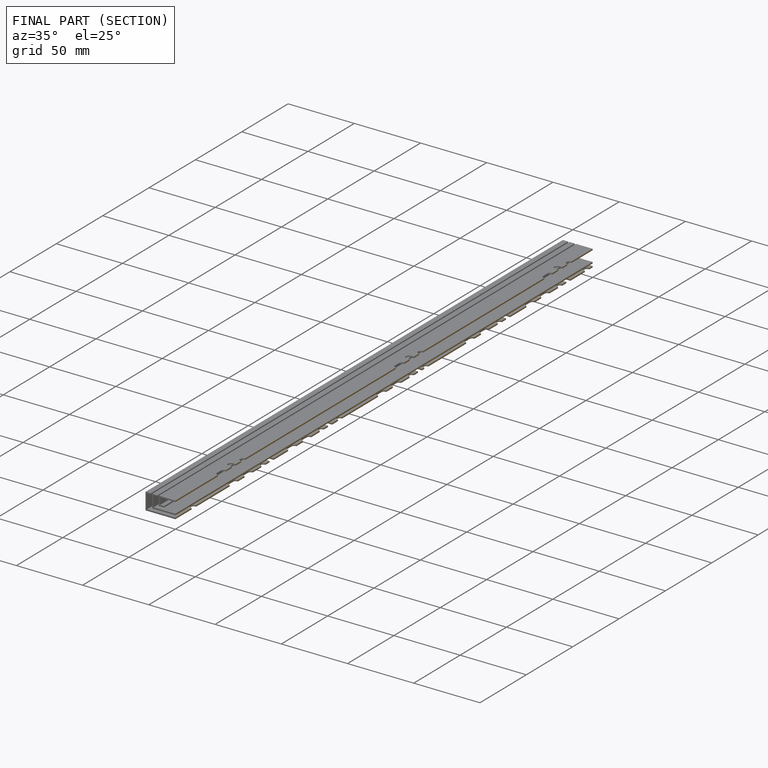
[diagram: finished part — half-section view (interior)]
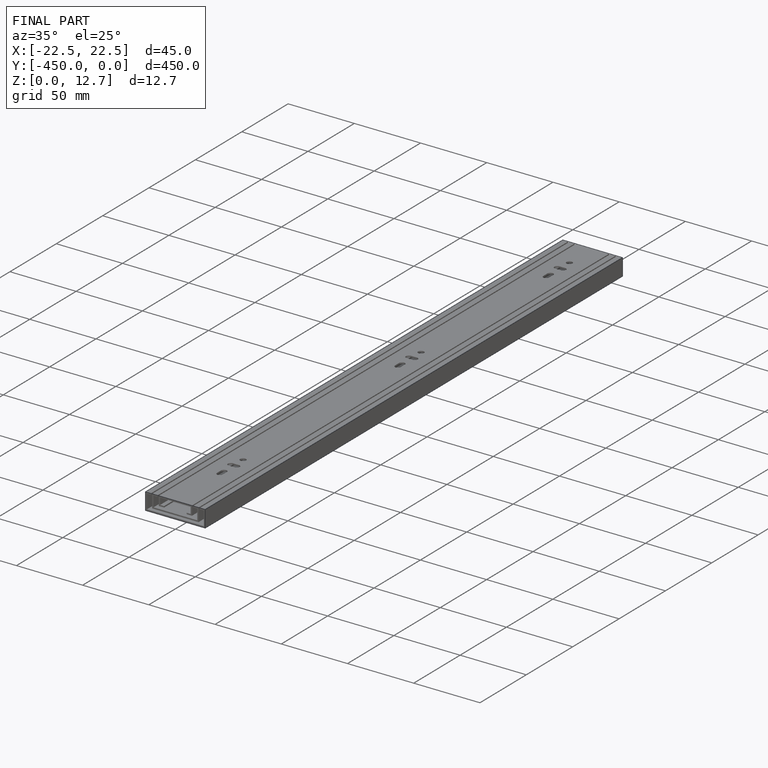
[diagram: finished part — iso view with bounding-box wireframe]
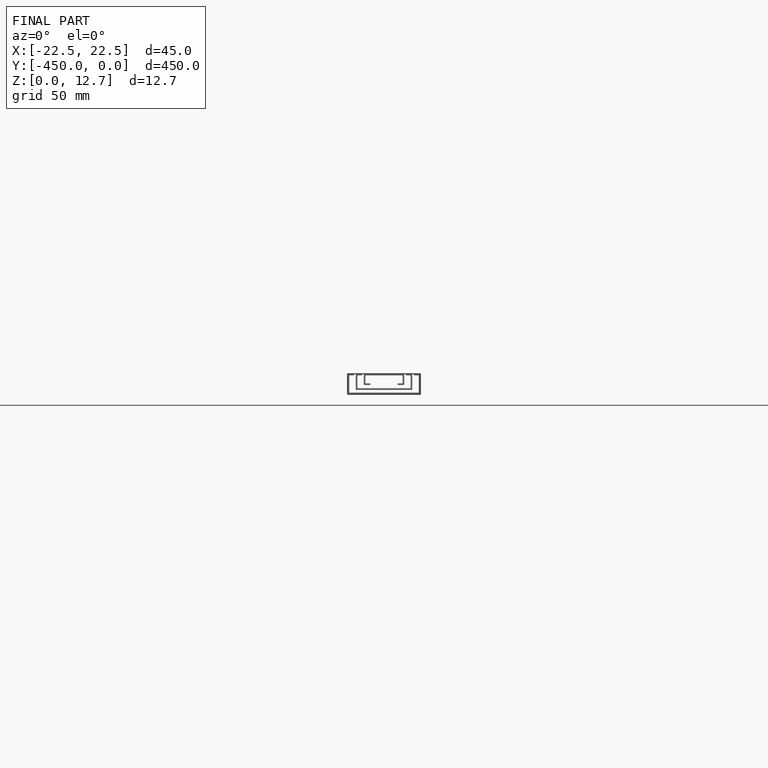
[diagram: finished part — front view with bounding-box wireframe]
